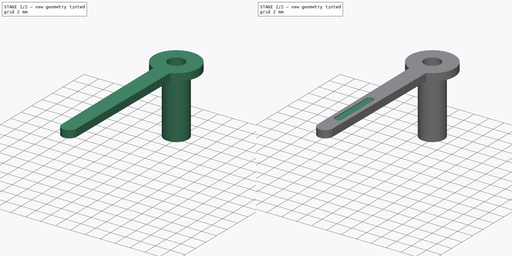
[diagram: build sequence overview — one tinted view per stage of 2, left to right]
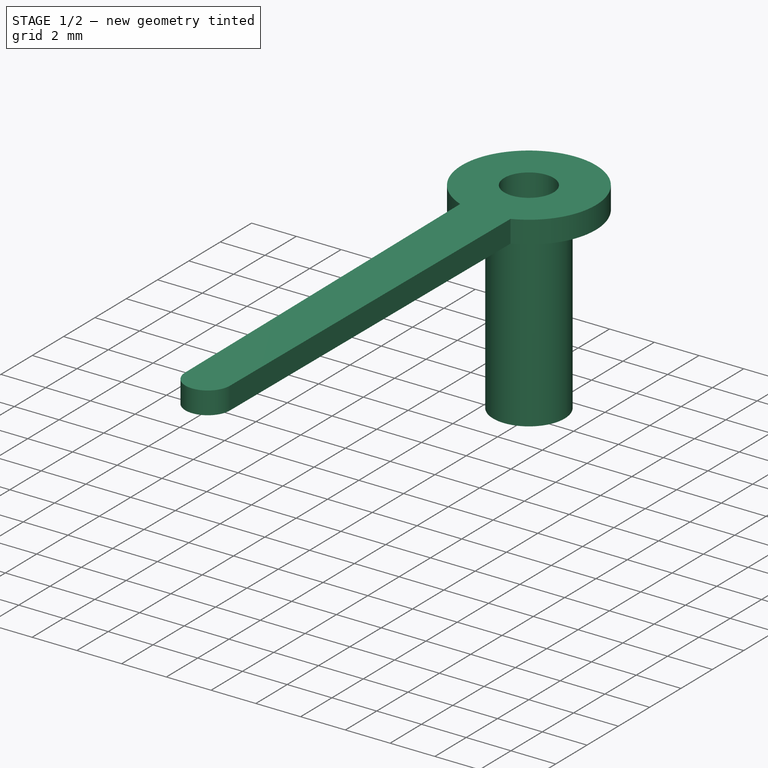
[diagram: stage 1 of 2 — iso view after this stage's code; geometry added in this stage tinted green]
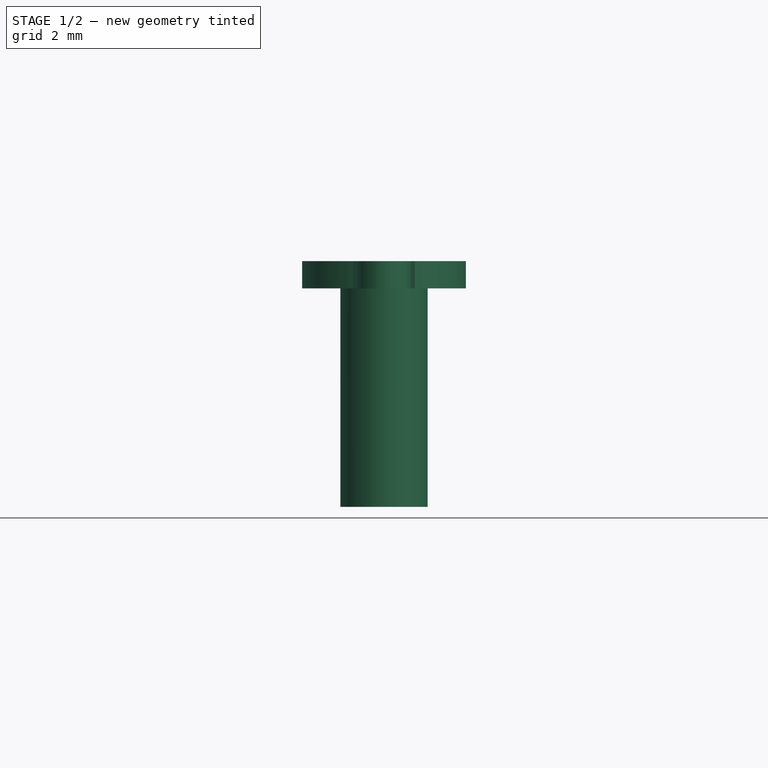
[diagram: stage 1 of 2 — front view after this stage's code; geometry added in this stage tinted green]
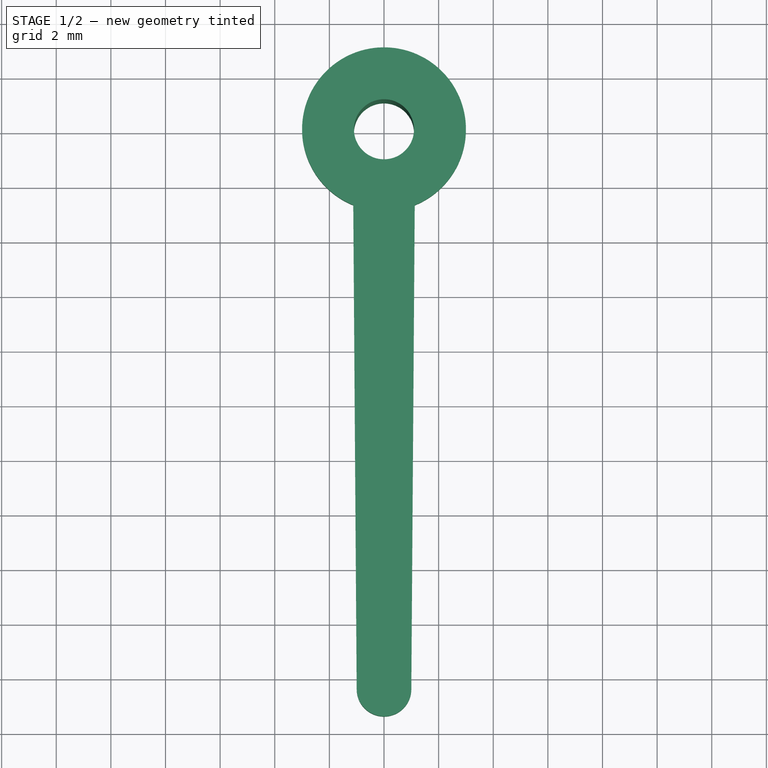
[diagram: stage 1 of 2 — top view after this stage's code; geometry added in this stage tinted green]
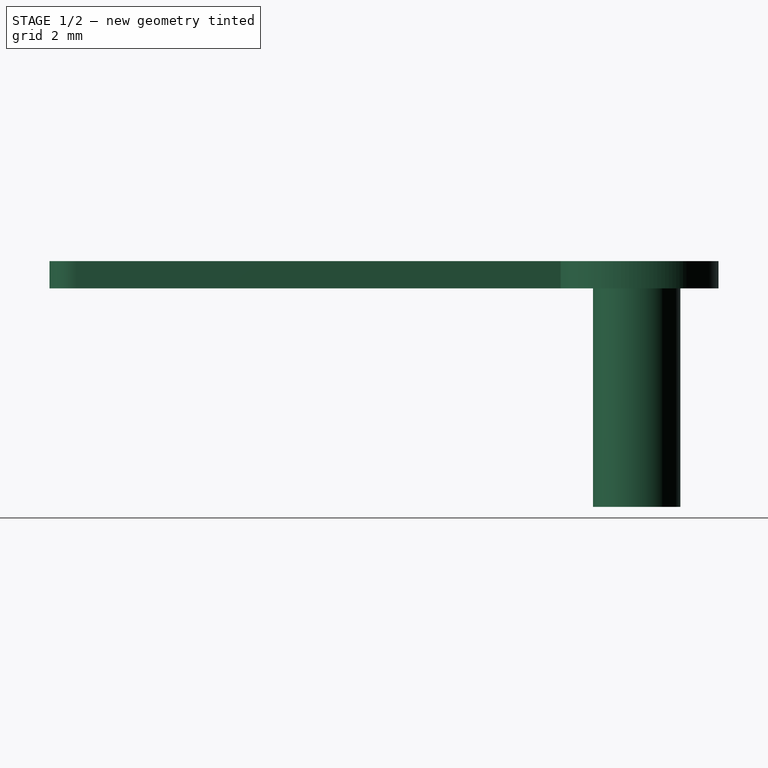
[diagram: stage 1 of 2 — right view after this stage's code; geometry added in this stage tinted green]
FCSTD DOCUMENT  (FreeCAD 0.19.4R1_voidlinux)
Label: hand_minute
License: All rights reserved
LicenseURL: http://en.wikipedia.org/wiki/All_rights_reserved
objects: Sketcher::SketchObject×3, PartDesign::Revolution×1, PartDesign::Pad×1, PartDesign::Pocket×1, PartDesign::Body×1, PartDesign::CoordinateSystem×1, App::Part×1
note: 11 computed .brp shape members not serialized (recipe doc carries the construction recipe); baked Part::Feature solids carry a one-line shape summary decoded from their .brp
EXTERNAL_REF file=master_animator.FCStd obj=Variables

FEATURE [Sketcher::SketchObject] Sketch
  FullyConstrained = true
  MapMode = 5
  Placement = pos=(0,0,0) rot=(0.57735,0.57735,0.57735;2.0944rad)
  Support = -> [YZ_Plane001]
  sketch-geometry (6):
    g0: LineSegment StartX=-3 StartY=0 StartZ=0 EndX=-1.1 EndY=0 EndZ=0
    g1: LineSegment StartX=-1.1 StartY=0 StartZ=0 EndX=-1.1 EndY=-9 EndZ=0
    g2: LineSegment StartX=-1.1 StartY=-9 StartZ=0 EndX=-1.6 EndY=-9 EndZ=0
    g3: LineSegment StartX=-1.6 StartY=-9 StartZ=0 EndX=-1.6 EndY=-1 EndZ=0
    g4: LineSegment StartX=-1.6 StartY=-1 StartZ=0 EndX=-3 EndY=-1 EndZ=0
    g5: LineSegment StartX=-3 StartY=-1 StartZ=0 EndX=-3 EndY=0 EndZ=0
  constraints (18):
    c: PointOnObject(g0,g-1)
    c: PointOnObject(g0,g-1)
    c: Coincident(g1,g0)
    c: Vertical(g1)
    c: Coincident(g2,g1)
    c: Horizontal(g2)
    c: Coincident(g3,g2)
    c: Vertical(g3)
    c: Coincident(g4,g3)
    c: Horizontal(g4)
    c: Coincident(g5,g4)
    c: Coincident(g5,g0)
    c: Vertical(g5)
    c: Distance(g2) = 0.5
    c: Distance(g0,g1) = 9
    c: Distance(g5) = 1
    c: Distance(g-1,g0) = 3
    c: DistanceX(g-2,g2) = -1.6
FEATURE [PartDesign::Revolution] Revolution
  Angle = 360
  Axis = (-2e-16,3e-16,1)
  Base = (0,0,0)
  Placement = pos=(0,0,0) rot=(0.57735,0.57735,0.57735;2.0944rad)
  Profile = -> Sketch
  ReferenceAxis = -> Sketch [V_Axis]
FEATURE [Sketcher::SketchObject] Sketch001
  ExternalGeometry = -> [Revolution]
  FullyConstrained = true
  MapMode = 5
  Placement = pos=(0,0,5e-16) rot=(0,0,-1;1.5708rad)
  Support = -> [Revolution]
  sketch-geometry (5):
    g0: LineSegment StartX=2.78107 StartY=1.125 StartZ=0 EndX=2.78107 EndY=-1.125 EndZ=0
    g1: LineSegment StartX=2.78107 StartY=1.125 StartZ=0 EndX=20.507 EndY=1 EndZ=0
    g2: LineSegment StartX=2.78107 StartY=-1.125 StartZ=0 EndX=20.507 EndY=-1 EndZ=0
    g3: ArcOfCircle CenterX=20.5 CenterY=0 CenterZ=0 NormalX=0 NormalY=0 NormalZ=1 AngleXU=0 Radius=1.00002 StartAngle=4.71944 EndAngle=7.84694
    g4: GeomPoint X=21.5 Y=0 Z=0
  constraints (13):
    c: PointOnObject(g0,g-3)
    c: Symmetric(g0,g0,g-1)
    c: Distance(g0) = 2.25
    c: Coincident(g1,g0)
    c: Coincident(g2,g0)
    c: Symmetric(g1,g2,g-1)
    c: Distance(g1,g2) = 2
    c: Coincident(g3,g1)
    c: Coincident(g3,g2)
    c: Tangent(g3,g1)
    c: PointOnObject(g4,g3)
    c: PointOnObject(g4,g-1)
    c: Distance(g-1,g4) = 21.5
FEATURE [PartDesign::Pad] Pad
  BaseFeature = -> Revolution
  Direction = (1,1,1)
  Length = 1
  Length2 = 100
  Placement = pos=(0,0,0) rot=(0.57735,0.57735,0.57735;2.0944rad)
  Profile = -> Sketch001
  Reversed = true
  Type = 0
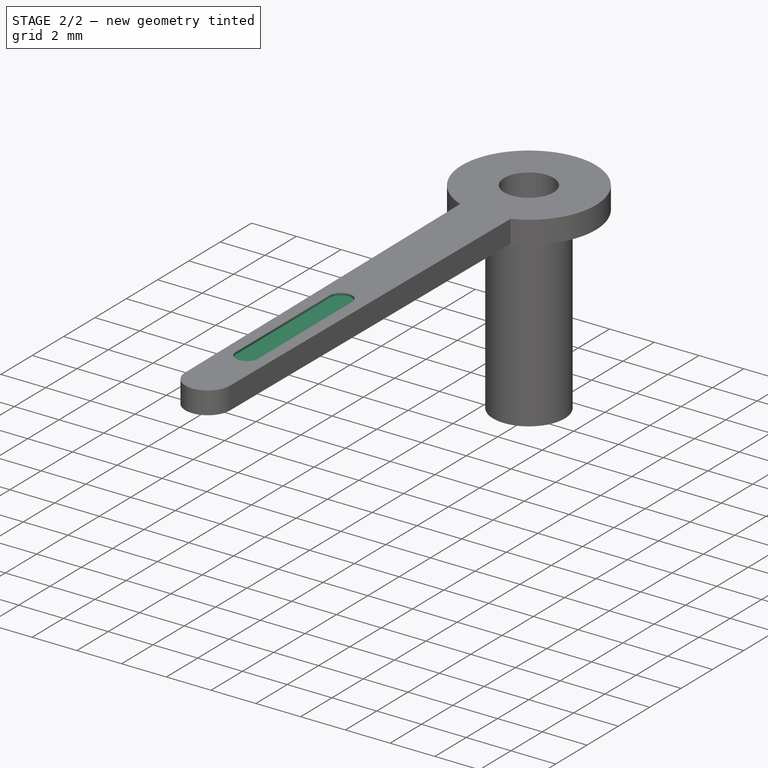
[diagram: stage 2 of 2 — iso view after this stage's code; geometry added in this stage tinted green]
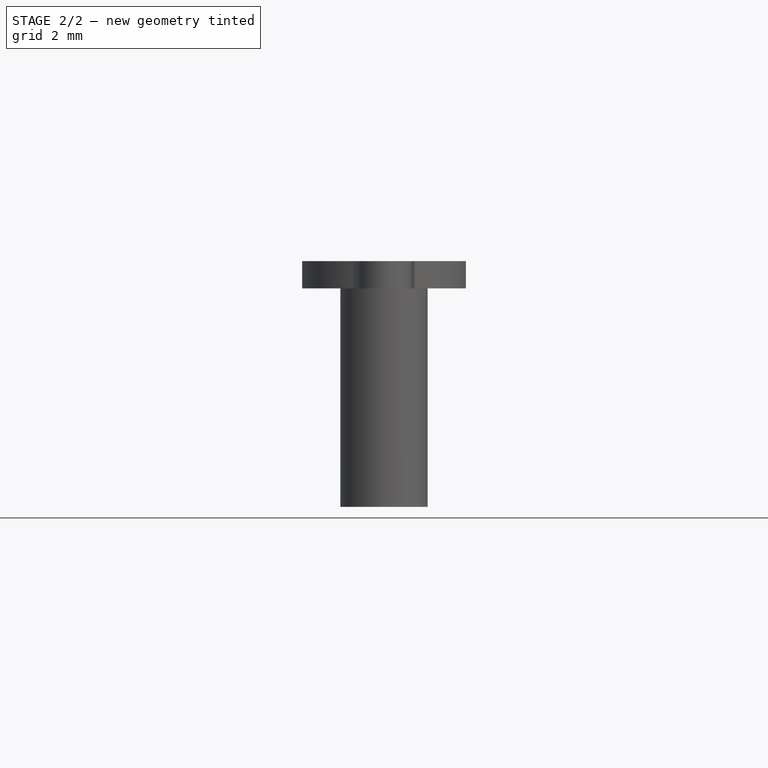
[diagram: stage 2 of 2 — front view after this stage's code; geometry added in this stage tinted green]
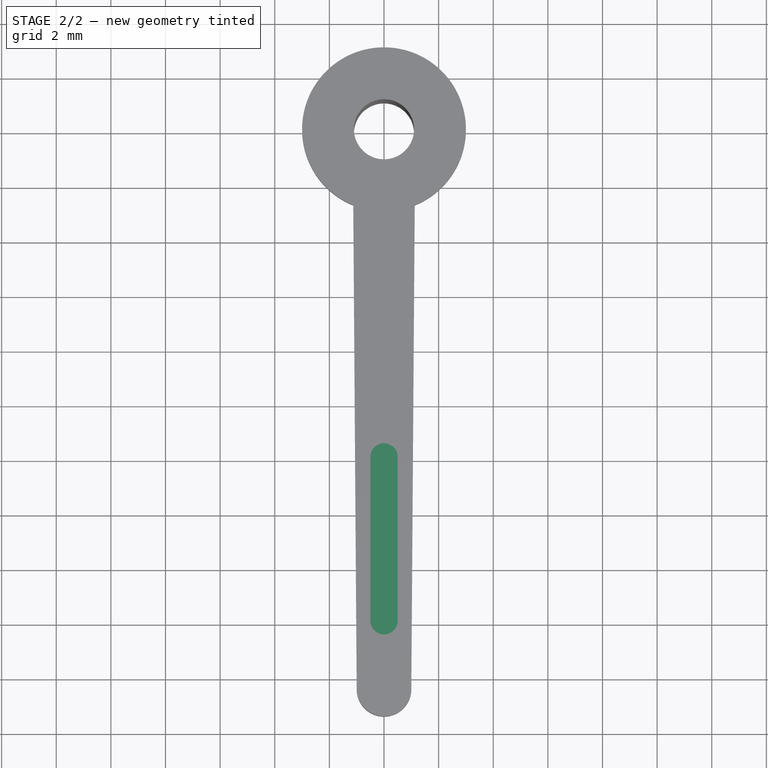
[diagram: stage 2 of 2 — top view after this stage's code; geometry added in this stage tinted green]
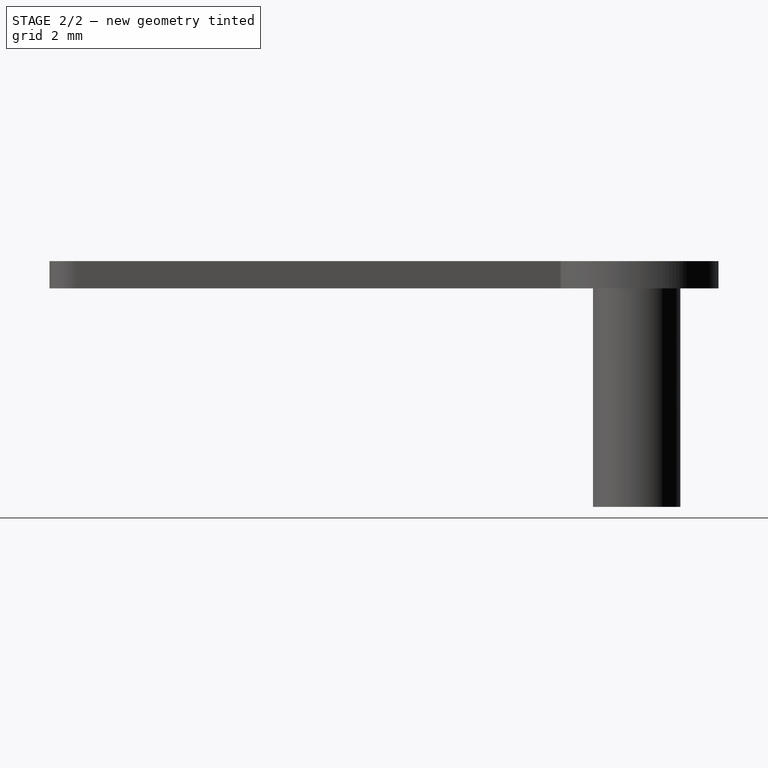
[diagram: stage 2 of 2 — right view after this stage's code; geometry added in this stage tinted green]
FEATURE [Sketcher::SketchObject] Sketch002
  ExternalGeometry = -> [Pad]
  FullyConstrained = true
  MapMode = 5
  Placement = pos=(0,0,5e-16) rot=(0,0,-1;1.5708rad)
  Support = -> [Pad]
  sketch-geometry (7):
    g0: ArcOfCircle CenterX=12 CenterY=0 CenterZ=0 NormalX=0 NormalY=0 NormalZ=1 AngleXU=0 Radius=0.5 StartAngle=1.5708 EndAngle=4.71239
    g1: ArcOfCircle CenterX=18 CenterY=0 CenterZ=0 NormalX=0 NormalY=0 NormalZ=1 AngleXU=0 Radius=0.5 StartAngle=4.71239 EndAngle=7.85398
    g2: LineSegment StartX=12 StartY=-0.5 StartZ=0 EndX=18 EndY=-0.5 EndZ=0
    g3: LineSegment StartX=12 StartY=0.5 StartZ=0 EndX=18 EndY=0.5 EndZ=0
    g4: GeomPoint X=21.5 Y=0 Z=0
    g5: GeomPoint X=18.5 Y=0 Z=0
    g6: GeomPoint X=11.5 Y=0 Z=0
  constraints (16):
    c: Tangent(g0,g3) = 1.5708
    c: Tangent(g0,g2) = -1.5708
    c: Tangent(g2,g1) = -1.5708
    c: Tangent(g3,g1) = 1.5708
    c: Horizontal(g2)
    c: Equal(g0,g1)
    c: PointOnObject(g0,g-1)
    c: PointOnObject(g4,g-3)
    c: PointOnObject(g4,g-1)
    c: PointOnObject(g5,g1)
    c: PointOnObject(g5,g-1)
    c: Distance(g5,g4) = 3
    c: PointOnObject(g6,g0)
    c: PointOnObject(g6,g-1)
    c: Distance(g6,g5) = 7
    c: Distance(g0,g0) = 1
FEATURE [PartDesign::Pocket] Pocket
  BaseFeature = -> Pad
  Length = 0.1
  Length2 = 100
  Placement = pos=(0,0,0) rot=(0.57735,0.57735,0.57735;2.0944rad)
  Profile = -> Sketch002
  Type = 0
FEATURE [PartDesign::Body] Body
  Group = -> [Sketch,Revolution,Sketch001,Pad,Sketch002,Pocket]
  Origin = -> Origin001
  Tip = -> Pocket
FEATURE [PartDesign::CoordinateSystem] LCS_tophole
  AttacherType = Attacher::AttachEngine3D
  AttachmentOffset = pos=(0,0,0) rot=(0,0,-1;0.349066rad)
  MapMode = 11
  Placement = pos=(0,0,2e-16) rot=(0,0,-1;0.349066rad)
  Support = -> [Pocket]
  expr: .AttachmentOffset.Base.z = -master_animator#Variables.explode * 6
FEATURE [App::Part] Part  label="hand_minute"
  Group = -> [LCS_tophole,Body]
  Origin = -> Origin
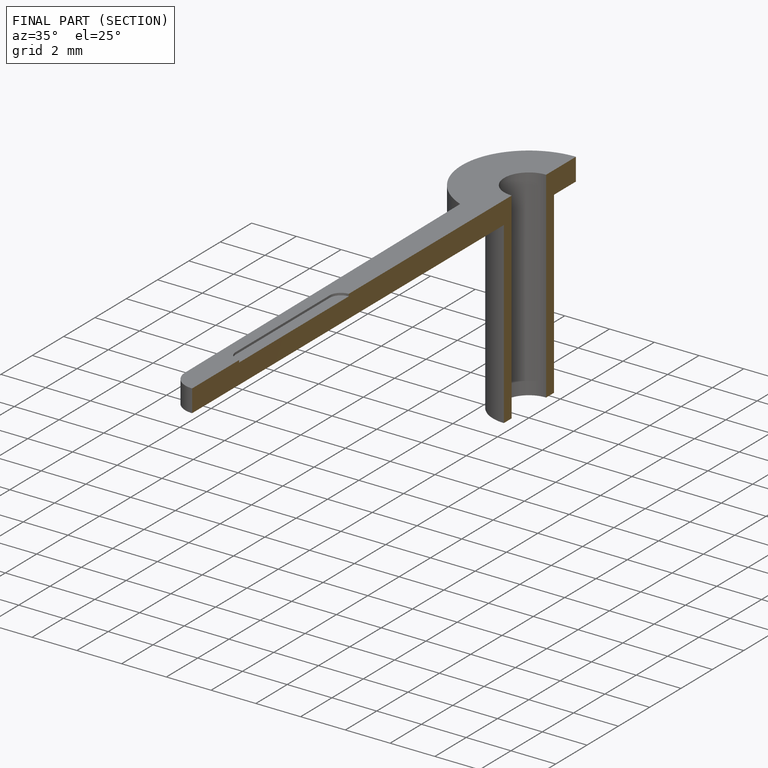
[diagram: finished part — half-section view (interior)]
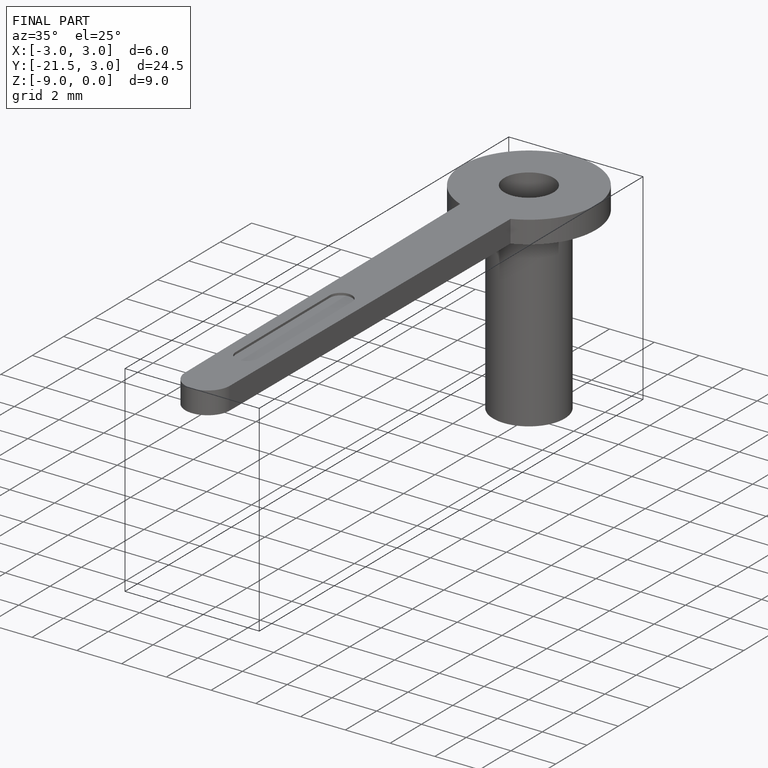
[diagram: finished part — iso view with bounding-box wireframe]
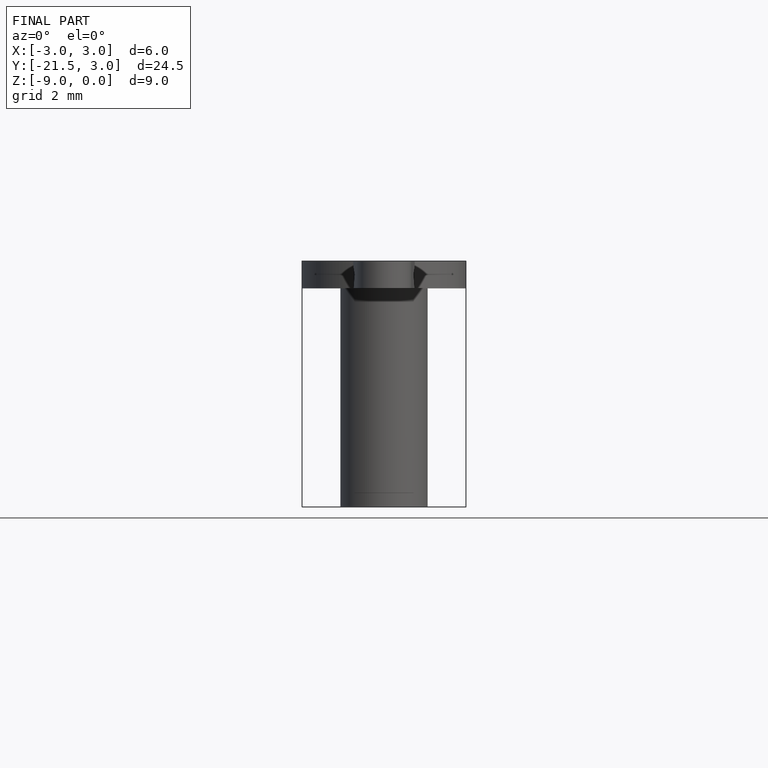
[diagram: finished part — front view with bounding-box wireframe]
